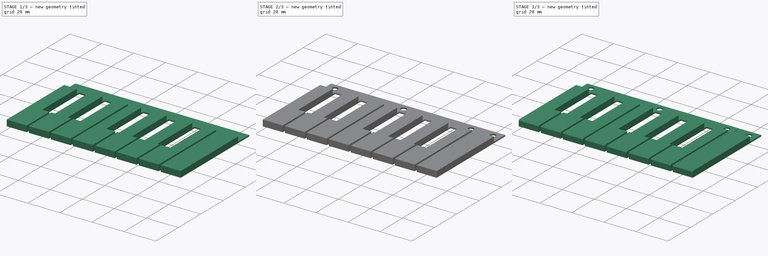
[diagram: build sequence overview — one tinted view per stage of 3, left to right]
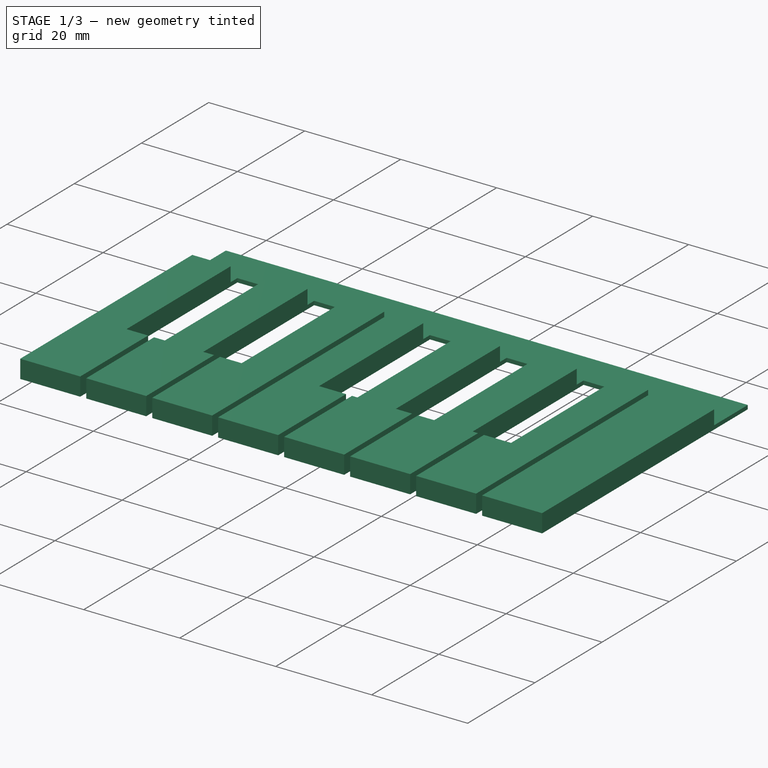
[diagram: stage 1 of 3 — iso view after this stage's code; geometry added in this stage tinted green]
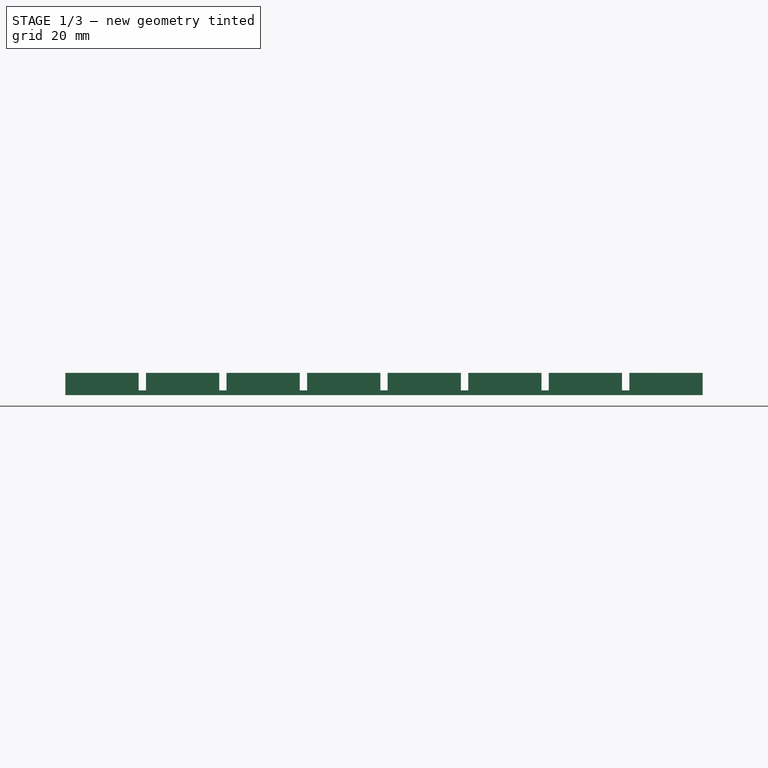
[diagram: stage 1 of 3 — front view after this stage's code; geometry added in this stage tinted green]
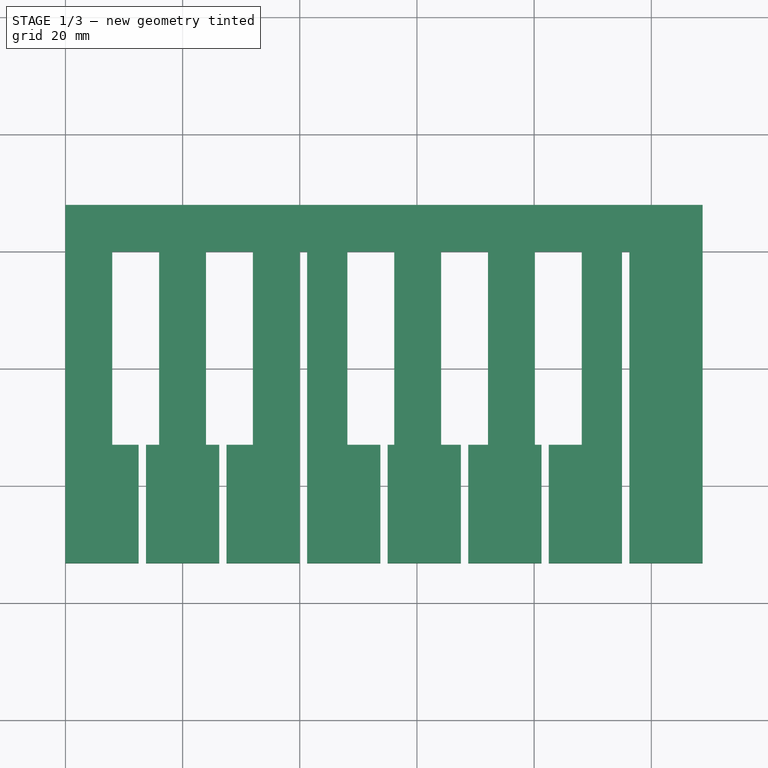
[diagram: stage 1 of 3 — top view after this stage's code; geometry added in this stage tinted green]
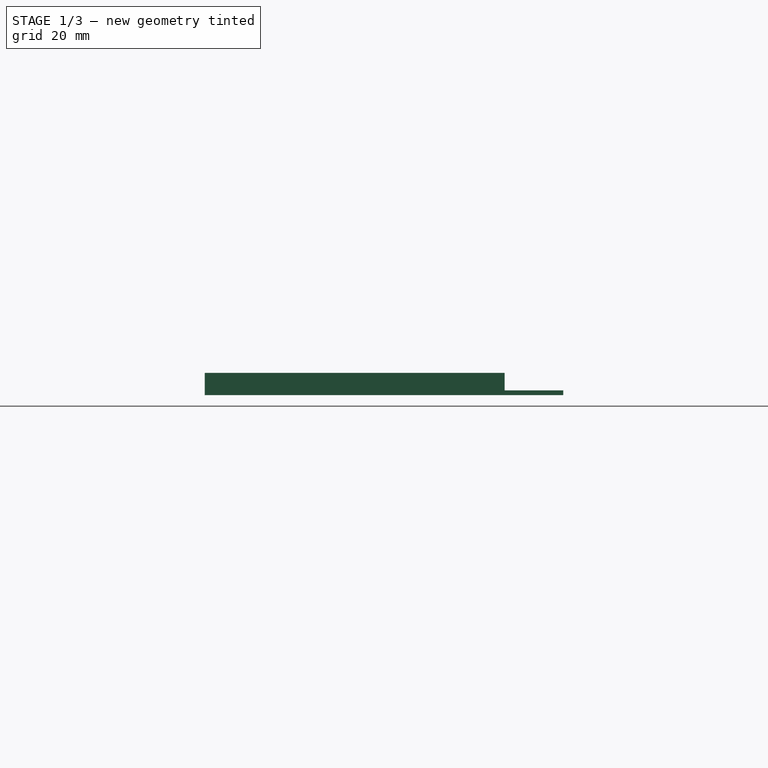
[diagram: stage 1 of 3 — right view after this stage's code; geometry added in this stage tinted green]
FCSTD DOCUMENT  (FreeCAD 0.21R33771 (Git))
Label: white_C_C
License: All rights reserved
LicenseURL: http://en.wikipedia.org/wiki/All_rights_reserved
objects: Sketcher::SketchObject×4, PartDesign::Pad×2, PartDesign::Pocket×2, PartDesign::Chamfer×1, PartDesign::Body×1
note: 15 computed .brp shape members not serialized (recipe doc carries the construction recipe); baked Part::Feature solids carry a one-line shape summary decoded from their .brp

FEATURE [Sketcher::SketchObject] Sketch  label="下の部分"
  FullyConstrained = true
  MapMode = 5
  Support = -> [XY_Plane]
  sketch-geometry (54):
    g0: LineSegment StartX=0 StartY=0 StartZ=0 EndX=0 EndY=-53.2 EndZ=0
    g1: LineSegment StartX=12.5 StartY=-53.2 StartZ=0 EndX=12.5 EndY=-33 EndZ=0
    g2: LineSegment StartX=12.5 StartY=-33 StartZ=0 EndX=8 EndY=-33 EndZ=0
    g3: LineSegment StartX=8 StartY=-33 StartZ=0 EndX=8 EndY=0 EndZ=0
    g4: LineSegment StartX=16 StartY=0 StartZ=0 EndX=16 EndY=-33 EndZ=0
    g5: LineSegment StartX=13.75 StartY=-33 StartZ=0 EndX=13.75 EndY=-53.2 EndZ=0
    g6: LineSegment StartX=13.75 StartY=-53.2 StartZ=0 EndX=26.25 EndY=-53.2 EndZ=0
    g7: LineSegment StartX=26.25 StartY=-33 StartZ=0 EndX=26.25 EndY=-53.2 EndZ=0
    g8: LineSegment StartX=26.25 StartY=-33 StartZ=0 EndX=24 EndY=-33 EndZ=0
    g9: LineSegment StartX=13.75 StartY=-33 StartZ=0 EndX=16 EndY=-33 EndZ=0
    g10: LineSegment StartX=32 StartY=0 StartZ=0 EndX=32 EndY=-33 EndZ=0
    g11: LineSegment StartX=32 StartY=-33 StartZ=0 EndX=27.5 EndY=-33 EndZ=0
    g12: LineSegment StartX=27.5 StartY=-33 StartZ=0 EndX=27.5 EndY=-53.2 EndZ=0
    g13: LineSegment StartX=27.5 StartY=-53.2 StartZ=0 EndX=40 EndY=-53.2 EndZ=0
    g14: LineSegment StartX=40 StartY=-53.2 StartZ=0 EndX=40 EndY=0 EndZ=0
    g15: LineSegment StartX=24 StartY=0 StartZ=0 EndX=24 EndY=-33 EndZ=0
    g16: LineSegment StartX=41.25 StartY=0 StartZ=0 EndX=41.25 EndY=-53.2 EndZ=0
    g17: LineSegment StartX=48.125 StartY=0 StartZ=0 EndX=48.125 EndY=-33 EndZ=0
    g18: LineSegment StartX=48.125 StartY=-33 StartZ=0 EndX=53.75 EndY=-33 EndZ=0
    g19: LineSegment StartX=53.75 StartY=-33 StartZ=0 EndX=53.75 EndY=-53.2 EndZ=0
    g20: LineSegment StartX=41.25 StartY=-53.2 StartZ=0 EndX=53.75 EndY=-53.2 EndZ=0
    g21: LineSegment StartX=56.125 StartY=0 StartZ=0 EndX=56.125 EndY=-33 EndZ=0
    g22: LineSegment StartX=56.125 StartY=-33 StartZ=0 EndX=55 EndY=-33 EndZ=0
    g23: LineSegment StartX=55 StartY=-33 StartZ=0 EndX=55 EndY=-53.2 EndZ=0
    g24: LineSegment StartX=55 StartY=-53.2 StartZ=0 EndX=67.5 EndY=-53.2 EndZ=0
    g25: LineSegment StartX=67.5 StartY=-53.2 StartZ=0 EndX=67.5 EndY=-33 EndZ=0
    g26: LineSegment StartX=67.5 StartY=-33 StartZ=0 EndX=64.125 EndY=-33 EndZ=0
    g27: LineSegment StartX=64.125 StartY=-33 StartZ=0 EndX=64.125 EndY=0 EndZ=0
    g28: LineSegment StartX=72.125 StartY=0 StartZ=0 EndX=72.125 EndY=-33 EndZ=0
    g29: LineSegment StartX=72.125 StartY=-33 StartZ=0 EndX=68.75 EndY=-33 EndZ=0
    g30: LineSegment StartX=68.75 StartY=-33 StartZ=0 EndX=68.75 EndY=-53.2 EndZ=0
    g31: LineSegment StartX=68.75 StartY=-53.2 StartZ=0 EndX=81.25 EndY=-53.2 EndZ=0
    g32: LineSegment StartX=81.25 StartY=-53.2 StartZ=0 EndX=81.25 EndY=-33 EndZ=0
    g33: LineSegment StartX=81.25 StartY=-33 StartZ=0 EndX=80.125 EndY=-33 EndZ=0
    g34: LineSegment StartX=80.125 StartY=-33 StartZ=0 EndX=80.125 EndY=0 EndZ=0
    g35: LineSegment StartX=0 StartY=-53.2 StartZ=0 EndX=12.5 EndY=-53.2 EndZ=0
    g36: LineSegment StartX=0 StartY=0 StartZ=0 EndX=0 EndY=8 EndZ=0
    g37: LineSegment StartX=8 StartY=0 StartZ=0 EndX=16 EndY=0 EndZ=0
    g38: LineSegment StartX=24 StartY=0 StartZ=0 EndX=32 EndY=0 EndZ=0
    g39: LineSegment StartX=48.125 StartY=0 StartZ=0 EndX=56.125 EndY=0 EndZ=0
    g40: LineSegment StartX=64.125 StartY=0 StartZ=0 EndX=72.125 EndY=0 EndZ=0
    g41: LineSegment StartX=40 StartY=0 StartZ=0 EndX=41.25 EndY=0 EndZ=0
    g42: LineSegment StartX=88.125 StartY=0 StartZ=0 EndX=88.125 EndY=-33 EndZ=0
    g43: LineSegment StartX=88.125 StartY=-33 StartZ=0 EndX=82.5 EndY=-33 EndZ=0
    g44: LineSegment StartX=82.5 StartY=-33 StartZ=0 EndX=82.5 EndY=-53.2 EndZ=0
    g45: LineSegment StartX=82.5 StartY=-53.2 StartZ=0 EndX=95 EndY=-53.2 EndZ=0
    g46: LineSegment StartX=95 StartY=-53.2 StartZ=0 EndX=95 EndY=0 EndZ=0
    g47: LineSegment StartX=0 StartY=8 StartZ=0 EndX=108.75 EndY=8 EndZ=0
    g48: LineSegment StartX=80.125 StartY=0 StartZ=0 EndX=88.125 EndY=0 EndZ=0
    g49: LineSegment StartX=96.25 StartY=0 StartZ=0 EndX=96.25 EndY=-53.2 EndZ=0
    g50: LineSegment StartX=96.25 StartY=-53.2 StartZ=0 EndX=108.75 EndY=-53.2 EndZ=0
    g51: LineSegment StartX=108.75 StartY=-53.2 StartZ=0 EndX=108.75 EndY=0 EndZ=0
    g52: LineSegment StartX=108.75 StartY=8 StartZ=0 EndX=108.75 EndY=0 EndZ=0
    g53: LineSegment StartX=95 StartY=0 StartZ=0 EndX=96.25 EndY=0 EndZ=0
  constraints (176):
    c: Coincident(g-1,g0)
    c: Vertical(g0)
    c: DistanceY(g0,g0) = 53.2
    c: DistanceX(g0,g1) = 12.5
    c: Vertical(g1)
    c: DistanceY(g1,g1) = 20.2
    c: Coincident(g2,g1)
    c: Horizontal(g2)
    c: Coincident(g3,g2)
    c: PointOnObject(g3,g-1)
    c: Vertical(g3)
    c: PointOnObject(g4,g-1)
    c: Vertical(g4)
    c: Vertical(g5)
    c: Coincident(g6,g5)
    c: Horizontal(g6)
    c: PointOnObject(g15,g-1)
    c: Equal(g1,g5)
    c: Equal(g3,g4)
    c: DistanceX(g0,g3) = 8
    c: DistanceX(g3,g4) = 8
    c: Horizontal(g5,g4)
    c: DistanceX(g1,g5) = 1.25
    c: DistanceX(g6,g6) = 12.5
    c: Coincident(g7,g6)
    c: Vertical(g7)
    c: Coincident(g8,g7)
    c: Horizontal(g8)
    c: Coincident(g9,g5)
    c: Horizontal(g9)
    c: DistanceX(g2,g1) = 4.5
    c: DistanceX(g9,g9) = 2.25
    c: PointOnObject(g10,g-1)
    c: Vertical(g10)
    c: Horizontal(g11)
    c: Vertical(g12)
    c: Horizontal(g13)
    c: PointOnObject(g14,g-1)
    c: Vertical(g14)
    c: Coincident(g11,g12)
    c: Coincident(g12,g13)
    c: Coincident(g13,g14)
    c: DistanceX(g6,g12) = 1.25
    c: Equal(g7,g12)
    c: DistanceX(g8,g7) = 2.25
    c: Coincident(g15,g8)
    c: Vertical(g15)
    c: DistanceX(g4,g15) = 8
    c: Equal(g4,g15)
    c: Equal(g10,g15)
    c: DistanceX(g13,g13) = 12.5
    c: DistanceX(g15,g10) = 8
    c: Coincident(g10,g11)
    c: DistanceX(g11,g10) = 4.5
    c: DistanceX(g10,g14) = 8
    c: PointOnObject(g16,g-1)
    c: Vertical(g16)
    c: DistanceX(g13,g16) = 1.25
    c: Equal(g14,g16)
    c: PointOnObject(g17,g-1)
    c: Vertical(g17)
    c: Coincident(g18,g17)
    c: Horizontal(g18)
    c: Coincident(g19,g18)
    c: Vertical(g19)
    c: Coincident(g20,g16)
    c: Coincident(g20,g19)
    c: Equal(g10,g17)
    c: Equal(g12,g19)
    c: DistanceX(g20,g20) = 12.5
    c: DistanceX(g16,g17) = 6.875
    c: DistanceX(g18,g18) = 5.625
    c: PointOnObject(g21,g-1)
    c: Vertical(g21)
    c: Horizontal(g22)
    c: Vertical(g23)
    c: Horizontal(g24)
    c: Vertical(g25)
    c: PointOnObject(g27,g-1)
    c: Vertical(g27)
    c: Equal(g10,g21)
    c: DistanceX(g17,g21) = 8
    c: Coincident(g22,g21)
    c: Coincident(g23,g22)
    c: Equal(g19,g23)
    c: Coincident(g24,g23)
    c: DistanceX(g24,g24) = 12.5
    c: DistanceX(g19,g23) = 1.25
    c: Equal(g23,g25)
    c: Coincident(g25,g24)
    c: Coincident(g26,g25)
    c: Coincident(g26,g27)
    c: Horizontal(g26)
    c: DistanceX(g21,g27) = 8
    c: PointOnObject(g28,g-1)
    c: Vertical(g28)
    c: Coincident(g29,g28)
    c: Horizontal(g29)
    c: Coincident(g30,g29)
    c: Vertical(g30)
    c: Coincident(g31,g30)
    c: Horizontal(g31)
    c: Coincident(g32,g31)
    c: Vertical(g32)
    c: Coincident(g33,g32)
    c: Horizontal(g33)
    c: Coincident(g34,g33)
    c: PointOnObject(g34,g-1)
    c: Vertical(g34)
    c: DistanceX(g27,g28) = 8
    c: DistanceX(g28,g34) = 8
    c: DistanceX(g31,g31) = 12.5
    c: DistanceX(g24,g30) = 1.25
    c: Equal(g27,g28)
    c: Equal(g25,g30)
    c: Equal(g28,g34)
    c: Coincident(g35,g0)
    c: Coincident(g35,g1)
    c: Horizontal(g35)
    c: Coincident(g36,g0)
    c: PointOnObject(g36,g-2)
    c: DistanceY(g36,g36) = 8
    c: PointOnObject(g37,g3)
    c: Coincident(g37,g4)
    c: Horizontal(g37)
    c: Coincident(g38,g15)
    c: Coincident(g38,g10)
    c: Coincident(g39,g17)
    c: Coincident(g39,g21)
    c: Coincident(g40,g27)
    c: Coincident(g40,g28)
    c: Coincident(g41,g14)
    c: Coincident(g41,g16)
    c: PointOnObject(g42,g-1)
    c: Vertical(g42)
    c: Coincident(g43,g42)
    c: Horizontal(g43)
    c: Coincident(g44,g43)
    c: Vertical(g44)
    c: Coincident(g45,g44)
    c: Horizontal(g45)
    c: Coincident(g46,g45)
    c: PointOnObject(g46,g-1)
    c: Vertical(g46)
    c: DistanceX(g34,g42) = 8
    c: Equal(g34,g42)
    c: Equal(g32,g44)
    c: DistanceX(g45,g45) = 12.5
    c: DistanceX(g31,g44) = 1.25
    c: Coincident(g47,g36)
    c: Horizontal(g47)
    c: Coincident(g48,g34)
    c: Coincident(g48,g42)
    c: DistanceX(g42,g46) = 6.875
    c: PointOnObject(g49,g-1)
    c: Vertical(g49)
    c: Coincident(g50,g49)
    c: Horizontal(g50)
    c: Coincident(g51,g50)
    c: PointOnObject(g51,g-1)
    c: Vertical(g51)
    c: DistanceX(g45,g49) = 1.25
    c: Equal(g46,g49)
    c: DistanceX(g50,g50) = 12.5
    c: Coincident(g52,g47)
    c: Coincident(g52,g51)
    c: Vertical(g52)
    c: Coincident(g53,g46)
    c: Coincident(g53,g49)
    c: DistanceX(g0,g3) = 8
    c: DistanceX(g0,g15) = 24
    c: DistanceX(g0,g17) = 48.125
    c: DistanceX(g0,g27) = 64.125
    c: DistanceX(g0,g34) = 80.125
    c: DistanceX(g0,g51) = 108.75
    c: DistanceX(g10,g17) = 16.125
FEATURE [PartDesign::Pad] Pad  label="押し出し 下の部分"
  Direction = (0,0,1)
  Length = 0.81
  Length2 = 10
  Profile = -> Sketch
  ReferenceAxis = -> Sketch [N_Axis]
  Type = 0
FEATURE [Sketcher::SketchObject] Sketch001  label="厚みある部分"
  ExternalGeometry = -> [Pad]
  FullyConstrained = true
  MapMode = 5
  Placement = pos=(0,0,0.81) rot=(0,0,1;0rad)
  Support = -> [Pad]
  sketch-geometry (52):
    g0: LineSegment StartX=0 StartY=-2 StartZ=0 EndX=0 EndY=-53.2 EndZ=0
    g1: LineSegment StartX=0 StartY=-53.2 StartZ=0 EndX=12.5 EndY=-53.2 EndZ=0
    g2: LineSegment StartX=12.5 StartY=-53.2 StartZ=0 EndX=12.5 EndY=-33 EndZ=0
    g3: LineSegment StartX=12.5 StartY=-33 StartZ=0 EndX=8 EndY=-33 EndZ=0
    g4: LineSegment StartX=8 StartY=-33 StartZ=0 EndX=8 EndY=-2 EndZ=0
    g5: LineSegment StartX=8 StartY=-2 StartZ=0 EndX=0 EndY=-2 EndZ=0
    g6: LineSegment StartX=16 StartY=-2 StartZ=0 EndX=16 EndY=-33 EndZ=0
    g7: LineSegment StartX=16 StartY=-33 StartZ=0 EndX=13.75 EndY=-33 EndZ=0
    g8: LineSegment StartX=13.75 StartY=-33 StartZ=0 EndX=13.75 EndY=-53.2 EndZ=0
    g9: LineSegment StartX=13.75 StartY=-53.2 StartZ=0 EndX=26.25 EndY=-53.2 EndZ=0
    g10: LineSegment StartX=26.25 StartY=-53.2 StartZ=0 EndX=26.25 EndY=-33 EndZ=0
    g11: LineSegment StartX=26.25 StartY=-33 StartZ=0 EndX=24 EndY=-33 EndZ=0
    g12: LineSegment StartX=24 StartY=-33 StartZ=0 EndX=24 EndY=-2 EndZ=0
    g13: LineSegment StartX=24 StartY=-2 StartZ=0 EndX=16 EndY=-2 EndZ=0
    g14: LineSegment StartX=32 StartY=-2 StartZ=0 EndX=32 EndY=-33 EndZ=0
    g15: LineSegment StartX=32 StartY=-33 StartZ=0 EndX=27.5 EndY=-33 EndZ=0
    g16: LineSegment StartX=27.5 StartY=-33 StartZ=0 EndX=27.5 EndY=-53.2 EndZ=0
    g17: LineSegment StartX=27.5 StartY=-53.2 StartZ=0 EndX=40 EndY=-53.2 EndZ=0
    g18: LineSegment StartX=40 StartY=-53.2 StartZ=0 EndX=40 EndY=-2 EndZ=0
    g19: LineSegment StartX=40 StartY=-2 StartZ=0 EndX=32 EndY=-2 EndZ=0
    g20: LineSegment StartX=41.25 StartY=-2 StartZ=0 EndX=41.25 EndY=-53.2 EndZ=0
    g21: LineSegment StartX=41.25 StartY=-53.2 StartZ=0 EndX=53.75 EndY=-53.2 EndZ=0
    g22: LineSegment StartX=53.75 StartY=-53.2 StartZ=0 EndX=53.75 EndY=-33 EndZ=0
    g23: LineSegment StartX=53.75 StartY=-33 StartZ=0 EndX=48.125 EndY=-33 EndZ=0
    g24: LineSegment StartX=48.125 StartY=-33 StartZ=0 EndX=48.125 EndY=-2 EndZ=0
    g25: LineSegment StartX=48.125 StartY=-2 StartZ=0 EndX=41.25 EndY=-2 EndZ=0
    g26: LineSegment StartX=56.125 StartY=-2 StartZ=0 EndX=56.125 EndY=-33 EndZ=0
    g27: LineSegment StartX=56.125 StartY=-33 StartZ=0 EndX=55 EndY=-33 EndZ=0
    g28: LineSegment StartX=55 StartY=-33 StartZ=0 EndX=55 EndY=-53.2 EndZ=0
    g29: LineSegment StartX=55 StartY=-53.2 StartZ=0 EndX=67.5 EndY=-53.2 EndZ=0
    g30: LineSegment StartX=67.5 StartY=-53.2 StartZ=0 EndX=67.5 EndY=-33 EndZ=0
    g31: LineSegment StartX=67.5 StartY=-33 StartZ=0 EndX=64.125 EndY=-33 EndZ=0
    g32: LineSegment StartX=64.125 StartY=-33 StartZ=0 EndX=64.125 EndY=-2 EndZ=0
    g33: LineSegment StartX=64.125 StartY=-2 StartZ=0 EndX=56.125 EndY=-2 EndZ=0
    g34: LineSegment StartX=72.125 StartY=-2 StartZ=0 EndX=72.125 EndY=-33 EndZ=0
    g35: LineSegment StartX=72.125 StartY=-33 StartZ=0 EndX=68.75 EndY=-33 EndZ=0
    g36: LineSegment StartX=68.75 StartY=-33 StartZ=0 EndX=68.75 EndY=-53.2 EndZ=0
    g37: LineSegment StartX=68.75 StartY=-53.2 StartZ=0 EndX=81.25 EndY=-53.2 EndZ=0
    g38: LineSegment StartX=81.25 StartY=-53.2 StartZ=0 EndX=81.25 EndY=-33 EndZ=0
    g39: LineSegment StartX=81.25 StartY=-33 StartZ=0 EndX=80.125 EndY=-33 EndZ=0
    g40: LineSegment StartX=80.125 StartY=-33 StartZ=0 EndX=80.125 EndY=-2 EndZ=0
    g41: LineSegment StartX=80.125 StartY=-2 StartZ=0 EndX=72.125 EndY=-2 EndZ=0
    g42: LineSegment StartX=88.125 StartY=-2 StartZ=0 EndX=88.125 EndY=-33 EndZ=0
    g43: LineSegment StartX=88.125 StartY=-33 StartZ=0 EndX=82.5 EndY=-33 EndZ=0
    g44: LineSegment StartX=82.5 StartY=-33 StartZ=0 EndX=82.5 EndY=-53.2 EndZ=0
    g45: LineSegment StartX=82.5 StartY=-53.2 StartZ=0 EndX=95 EndY=-53.2 EndZ=0
    g46: LineSegment StartX=95 StartY=-53.2 StartZ=0 EndX=95 EndY=-2 EndZ=0
    g47: LineSegment StartX=95 StartY=-2 StartZ=0 EndX=88.125 EndY=-2 EndZ=0
    g48: LineSegment StartX=96.25 StartY=-2 StartZ=0 EndX=96.25 EndY=-53.2 EndZ=0
    g49: LineSegment StartX=96.25 StartY=-53.2 StartZ=0 EndX=108.75 EndY=-53.2 EndZ=0
    g50: LineSegment StartX=108.75 StartY=-53.2 StartZ=0 EndX=108.75 EndY=-2 EndZ=0
    g51: LineSegment StartX=108.75 StartY=-2 StartZ=0 EndX=96.25 EndY=-2 EndZ=0
  constraints (120):
    c: PointOnObject(g0,g-4)
    c: Coincident(g0,g-8)
    c: Coincident(g0,g1)
    c: Coincident(g1,g-8)
    c: Coincident(g1,g2)
    c: Coincident(g2,g-7)
    c: Coincident(g2,g3)
    c: Coincident(g3,g-6)
    c: Coincident(g3,g4)
    c: PointOnObject(g4,g-5)
    c: Coincident(g4,g5)
    c: Coincident(g5,g0)
    c: Horizontal(g5)
    c: DistanceY(g0,g-3) = 10
    c: PointOnObject(g6,g-12)
    c: Coincident(g6,g-12)
    c: Coincident(g6,g7)
    c: Coincident(g7,g-11)
    c: Coincident(g7,g8)
    c: Coincident(g8,g-10)
    c: Coincident(g8,g9)
    c: Coincident(g9,g-15)
    c: Coincident(g9,g10)
    c: Coincident(g10,g-15)
    c: Coincident(g10,g11)
    c: Coincident(g11,g-14)
    c: Coincident(g11,g12)
    c: PointOnObject(g12,g-13)
    c: Coincident(g12,g13)
    c: Coincident(g13,g6)
    c: Horizontal(g13)
    c: Equal(g4,g6)
    c: PointOnObject(g14,g-17)
    c: Coincident(g14,g-17)
    c: Coincident(g14,g15)
    c: Coincident(g15,g-16)
    c: Coincident(g15,g16)
    c: Coincident(g16,g-19)
    c: Coincident(g16,g17)
    c: Coincident(g17,g-19)
    c: Coincident(g17,g18)
    c: PointOnObject(g18,g-18)
    c: Coincident(g18,g19)
    c: Coincident(g19,g14)
    c: Equal(g12,g14)
    c: Equal(g0,g18)
    c: PointOnObject(g20,g-20)
    c: Coincident(g20,g-21)
    c: Coincident(g20,g21)
    c: Coincident(g21,g-30)
    c: Coincident(g21,g22)
    c: Coincident(g22,g-30)
    c: Coincident(g22,g23)
    c: Coincident(g23,g-29)
    c: Coincident(g23,g24)
    c: PointOnObject(g24,g-28)
    c: Coincident(g24,g25)
    c: Coincident(g25,g20)
    c: Horizontal(g25)
    c: Equal(g18,g20)
    c: PointOnObject(g26,g-33)
    c: Coincident(g26,g-33)
    c: Coincident(g26,g27)
    c: Coincident(g27,g-32)
    c: Coincident(g27,g28)
    c: Coincident(g28,g-31)
    c: Coincident(g28,g29)
    c: Coincident(g29,g-36)
    c: Coincident(g29,g30)
    c: Coincident(g30,g-36)
    c: Coincident(g30,g31)
    c: Coincident(g31,g-35)
    c: Coincident(g31,g32)
    c: PointOnObject(g32,g-34)
    c: Coincident(g32,g33)
    c: Coincident(g33,g26)
    c: Equal(g24,g26)
    c: Equal(g26,g32)
    c: PointOnObject(g34,g-39)
    c: Coincident(g34,g-39)
    c: Coincident(g34,g35)
    c: Coincident(g35,g-38)
    c: Coincident(g35,g36)
    c: Coincident(g36,g-37)
    c: Coincident(g36,g37)
    c: Coincident(g37,g-45)
    c: Coincident(g37,g38)
    c: Coincident(g38,g-47)
    c: Coincident(g38,g39)
    c: Coincident(g39,g-47)
    c: Coincident(g39,g40)
    c: PointOnObject(g40,g-40)
    c: Coincident(g40,g41)
    c: Coincident(g41,g34)
    c: Equal(g32,g34)
    c: Equal(g34,g40)
    c: PointOnObject(g42,g-41)
    c: Coincident(g42,g-44)
    c: Coincident(g42,g43)
    c: Coincident(g43,g-46)
    c: Coincident(g43,g44)
    c: Coincident(g44,g-46)
    c: Coincident(g44,g45)
    c: Coincident(g45,g-42)
    c: Coincident(g45,g46)
    c: PointOnObject(g46,g-42)
    c: Coincident(g46,g47)
    c: Coincident(g47,g42)
    c: Equal(g40,g42)
    c: Equal(g20,g46)
    c: PointOnObject(g48,g-43)
    c: Coincident(g48,g-43)
    c: Coincident(g48,g49)
    c: Coincident(g49,g-27)
    c: Coincident(g49,g50)
    c: PointOnObject(g50,g-27)
    c: Coincident(g50,g51)
    c: Coincident(g51,g48)
    c: Equal(g46,g48)
    c: Equal(g48,g50)
FEATURE [PartDesign::Pad] Pad001  label="押し出し 厚みある部分"
  BaseFeature = -> Pad
  Direction = (0,0,1)
  Length = 3
  Length2 = 10
  Profile = -> Sketch001
  ReferenceAxis = -> Sketch001 [N_Axis]
  Type = 0
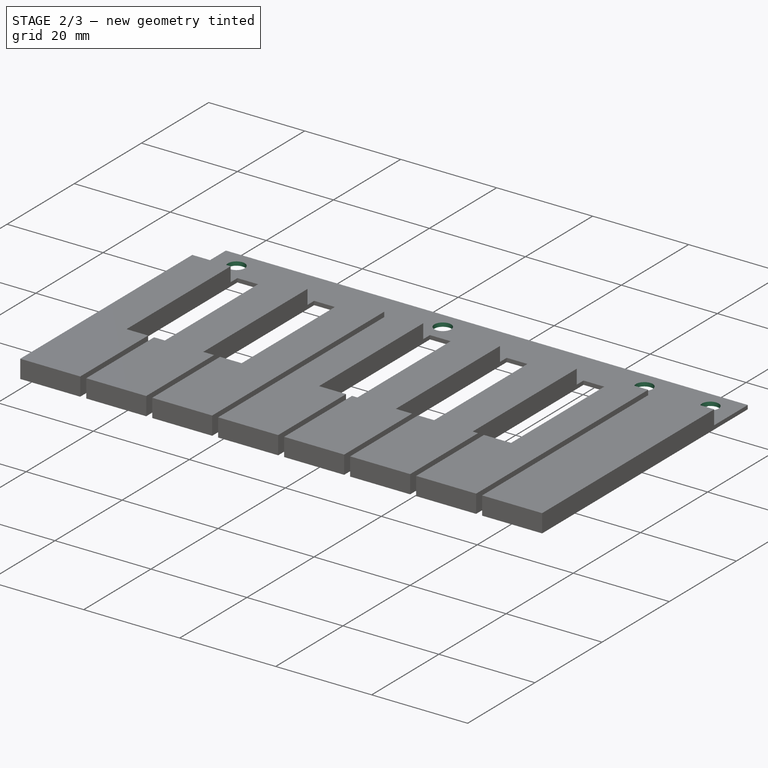
[diagram: stage 2 of 3 — iso view after this stage's code; geometry added in this stage tinted green]
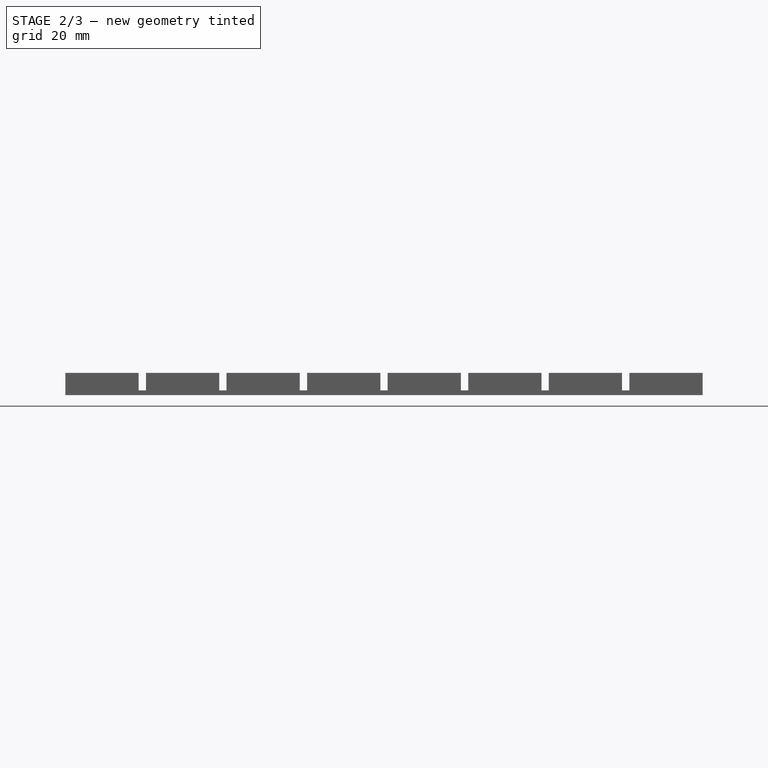
[diagram: stage 2 of 3 — front view after this stage's code; geometry added in this stage tinted green]
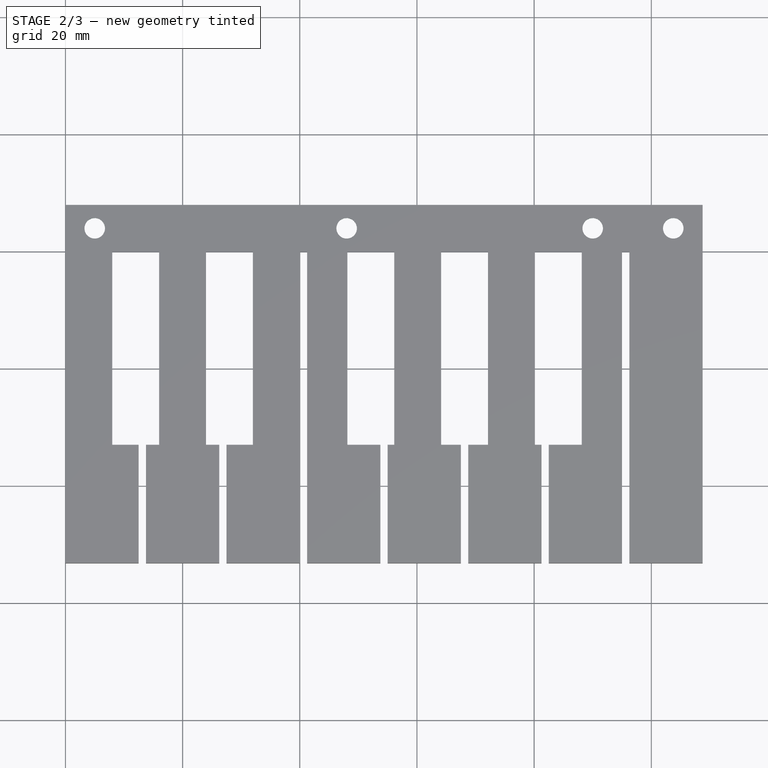
[diagram: stage 2 of 3 — top view after this stage's code; geometry added in this stage tinted green]
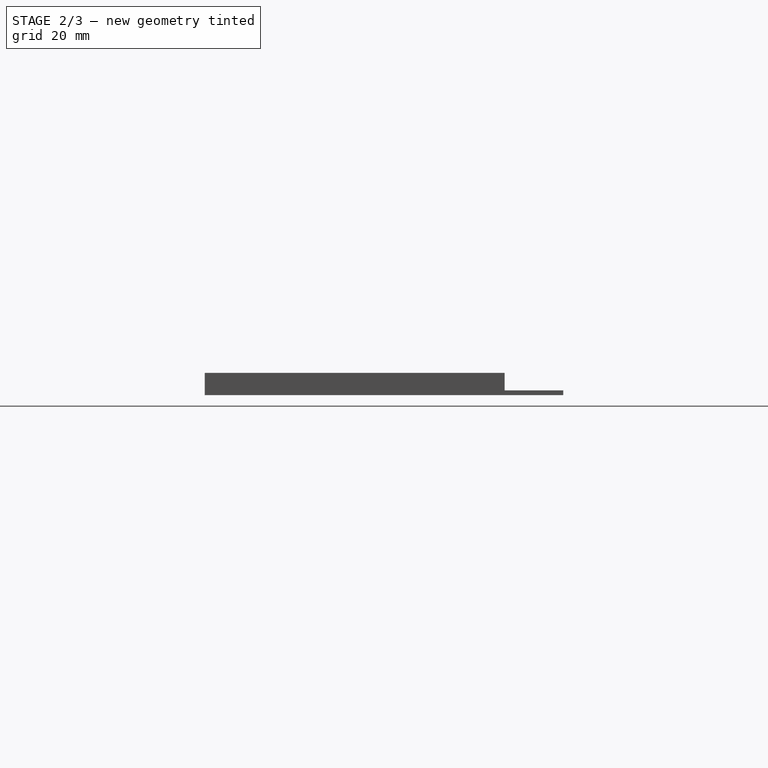
[diagram: stage 2 of 3 — right view after this stage's code; geometry added in this stage tinted green]
FEATURE [Sketcher::SketchObject] Sketch002  label="ネジ穴"
  ExternalGeometry = -> [Pad001]
  FullyConstrained = true
  MapMode = 5
  Placement = pos=(0,0,0.81) rot=(0,0,1;0rad)
  Support = -> [Pad001]
  sketch-geometry (4):
    g0: Circle CenterX=5 CenterY=4 CenterZ=0 NormalX=0 NormalY=0 NormalZ=1 AngleXU=0 Radius=1.75
    g1: Circle CenterX=48 CenterY=4 CenterZ=0 NormalX=0 NormalY=0 NormalZ=1 AngleXU=0 Radius=1.75
    g2: Circle CenterX=90 CenterY=4 CenterZ=0 NormalX=0 NormalY=0 NormalZ=1 AngleXU=0 Radius=1.75
    g3: Circle CenterX=103.75 CenterY=4 CenterZ=0 NormalX=0 NormalY=0 NormalZ=1 AngleXU=0 Radius=1.75
  constraints (16):
    c: Diameter(g0) = 3.5
    c: Equal(g0,g1)
    c: Equal(g1,g2)
    c: Equal(g2,g3)
    c: DistanceX(g-1,g0) = 5
    c: DistanceY(g0,g-3) = 4
    c: DistanceY(g1,g-3) = 4
    c: DistanceX(g-3,g1) = 48
    c: DistanceX(g2,g-5) = 5
    c: DistanceY(g2,g-4) = 4
    c: DistanceX(g3,g-4) = 5
    c: DistanceY(g3,g-4) = 4
    c: DistanceX(g2,g-4) = 18.75
    c: DistanceX(g-3,g-3) = 108.75
    c: DistanceX(g-1,g-5) = 95
    c: DistanceY(g-6,g-4) = 61.2
FEATURE [PartDesign::Pocket] Pocket  label="押し出しネジ穴"
  BaseFeature = -> Pad001
  Direction = (0,0,-1)
  Length = 5
  Length2 = 5
  Profile = -> Sketch002
  ReferenceAxis = -> Sketch002 [N_Axis]
  Type = 0
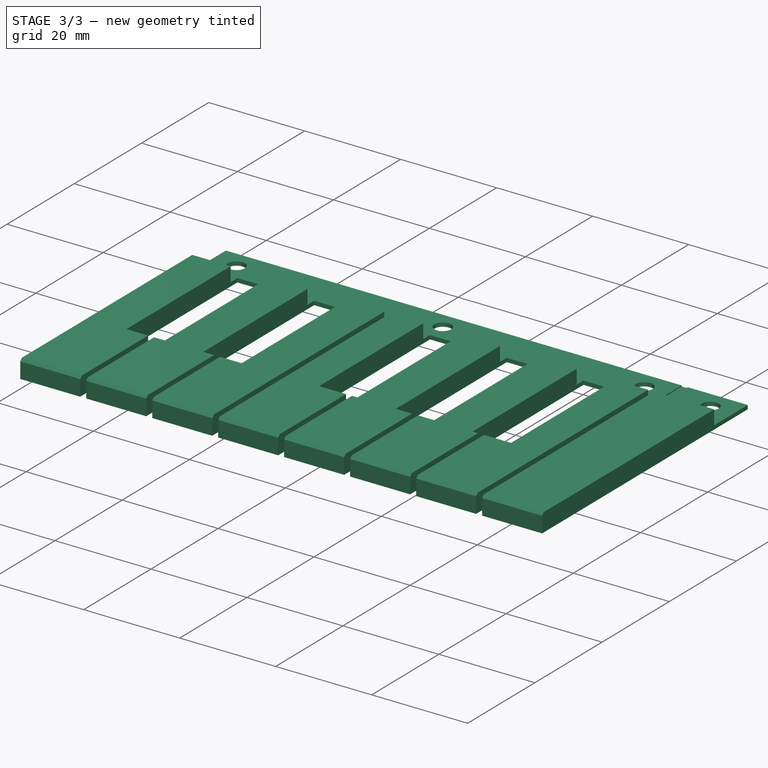
[diagram: stage 3 of 3 — iso view after this stage's code; geometry added in this stage tinted green]
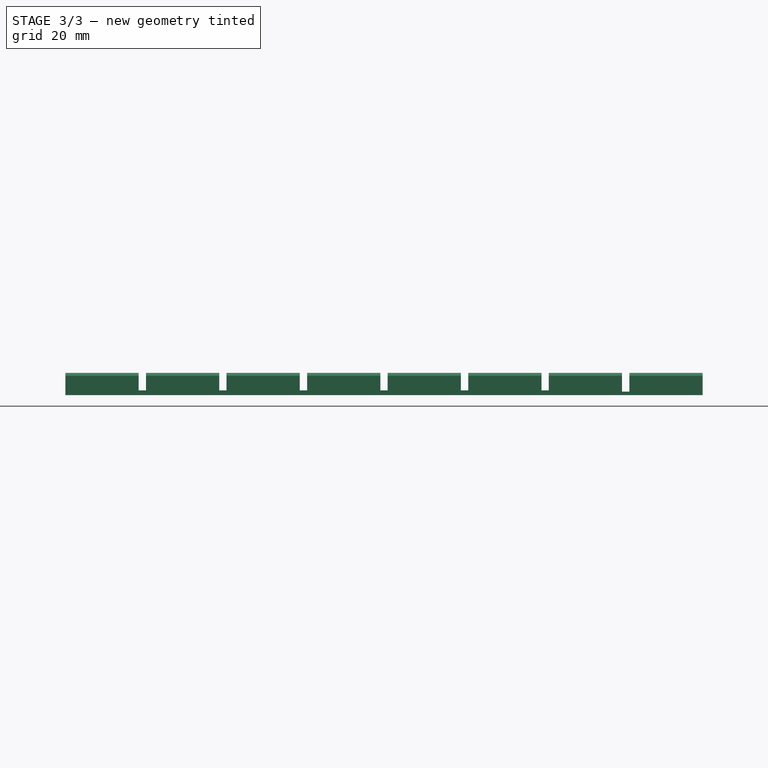
[diagram: stage 3 of 3 — front view after this stage's code; geometry added in this stage tinted green]
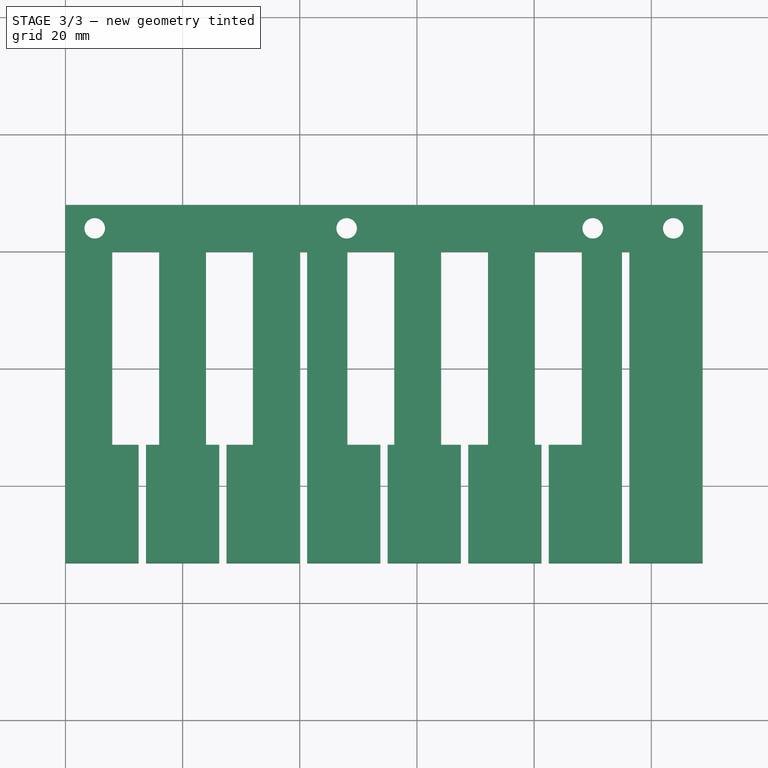
[diagram: stage 3 of 3 — top view after this stage's code; geometry added in this stage tinted green]
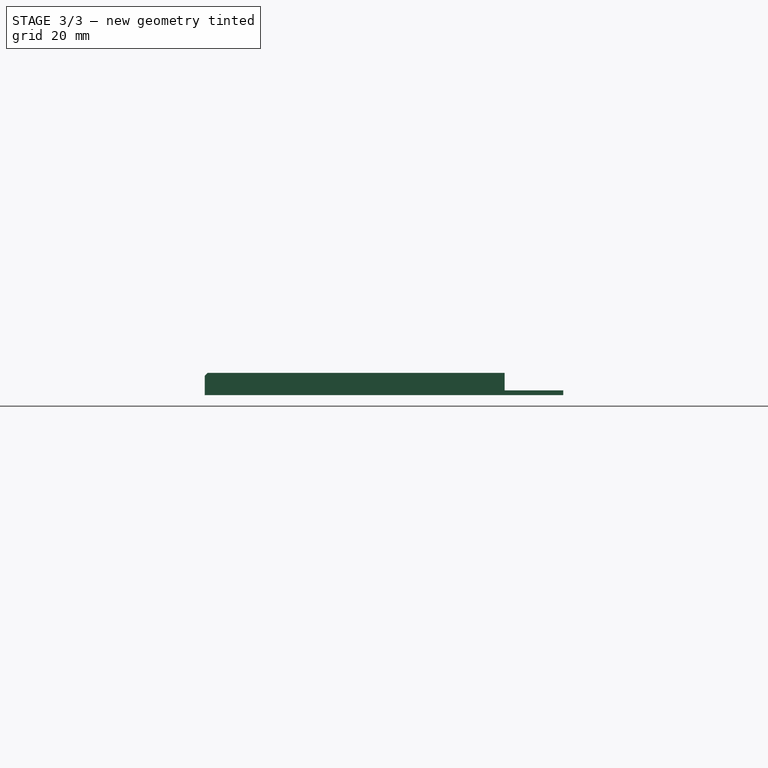
[diagram: stage 3 of 3 — right view after this stage's code; geometry added in this stage tinted green]
FEATURE [Sketcher::SketchObject] Sketch003  label="切りとり線"
  ExternalGeometry = -> [Pocket]
  FullyConstrained = true
  MapMode = 5
  Placement = pos=(0,0,0.81) rot=(0,0,1;0rad)
  Support = -> [Pocket]
  sketch-geometry (4):
    g0: LineSegment StartX=95 StartY=0 StartZ=0 EndX=95 EndY=8 EndZ=0
    g1: LineSegment StartX=95 StartY=8 StartZ=0 EndX=96.25 EndY=8 EndZ=0
    g2: LineSegment StartX=96.25 StartY=8 StartZ=0 EndX=96.25 EndY=0 EndZ=0
    g3: LineSegment StartX=96.25 StartY=0 StartZ=0 EndX=95 EndY=0 EndZ=0
  constraints (11):
    c: Coincident(g-4,g0)
    c: PointOnObject(g0,g-5)
    c: Vertical(g0)
    c: Coincident(g0,g1)
    c: PointOnObject(g1,g-5)
    c: Coincident(g1,g2)
    c: Coincident(g2,g-6)
    c: Vertical(g2)
    c: Coincident(g2,g3)
    c: Coincident(g3,g0)
    c: DistanceX(g-5,g0) = 95
FEATURE [PartDesign::Pocket] Pocket001
  BaseFeature = -> Pocket
  Direction = (0,0,-1)
  Length = 0.2
  Length2 = 5
  Profile = -> Sketch003
  ReferenceAxis = -> Sketch003 [N_Axis]
  Type = 0
FEATURE [PartDesign::Chamfer] Chamfer  label="白鍵の先端をちょっと丸める"
  Angle = 45
  Base = -> Pocket001 [Edge109,Edge257,Edge283,Edge293,Edge306,Edge281,Edge255,Edge243]
  BaseFeature = -> Pocket001
  ChamferType = 0
  FlipDirection = false
  Size = 0.5
  Size2 = 1
  SupportTransform = false
  UseAllEdges = false
FEATURE [PartDesign::Body] Body
  Group = -> [Sketch,Pad,Sketch001,Pad001,Sketch002,Pocket,Sketch003,Pocket001,Chamfer]
  Origin = -> Origin
  Tip = -> Chamfer
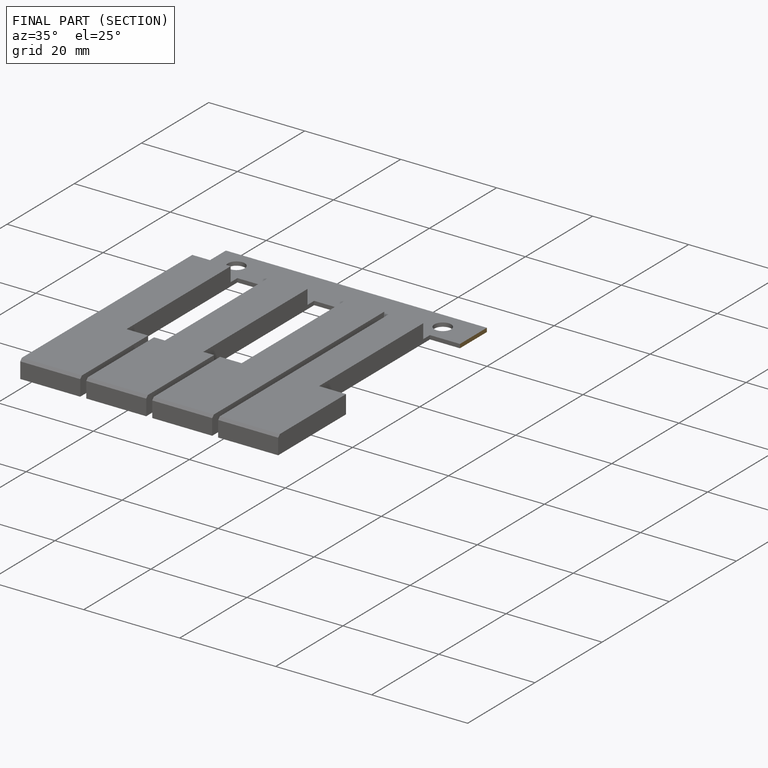
[diagram: finished part — half-section view (interior)]
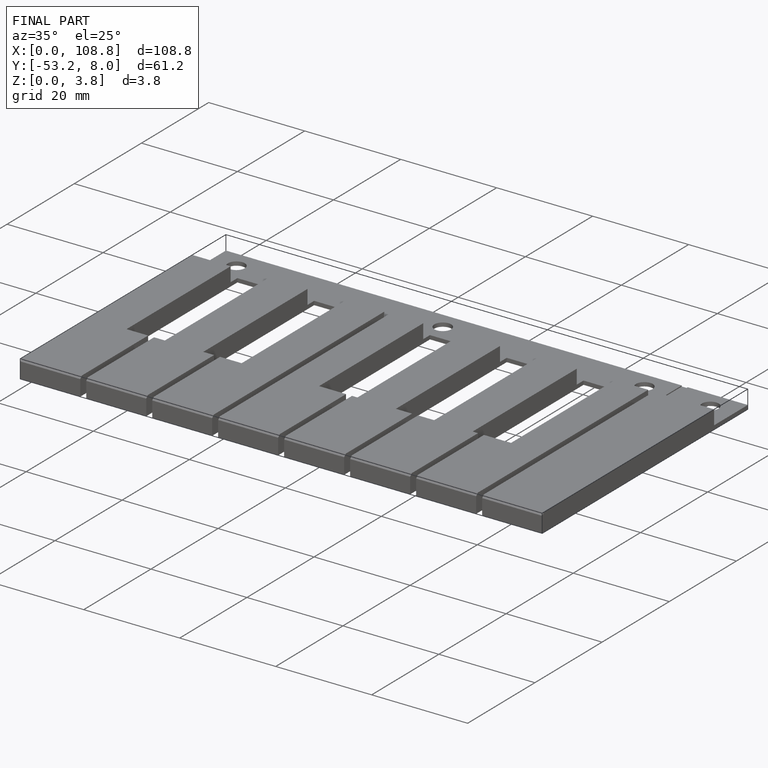
[diagram: finished part — iso view with bounding-box wireframe]
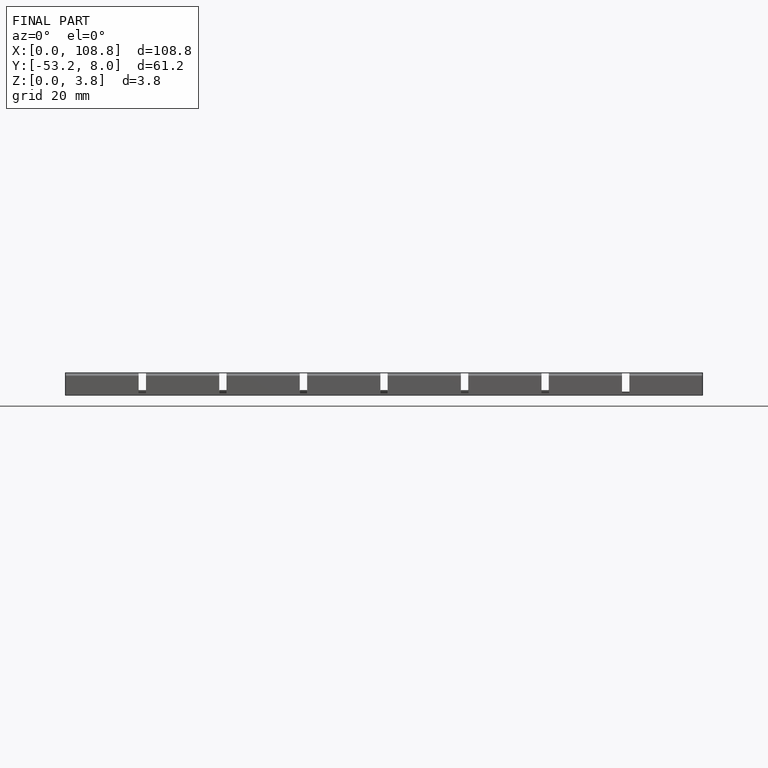
[diagram: finished part — front view with bounding-box wireframe]
